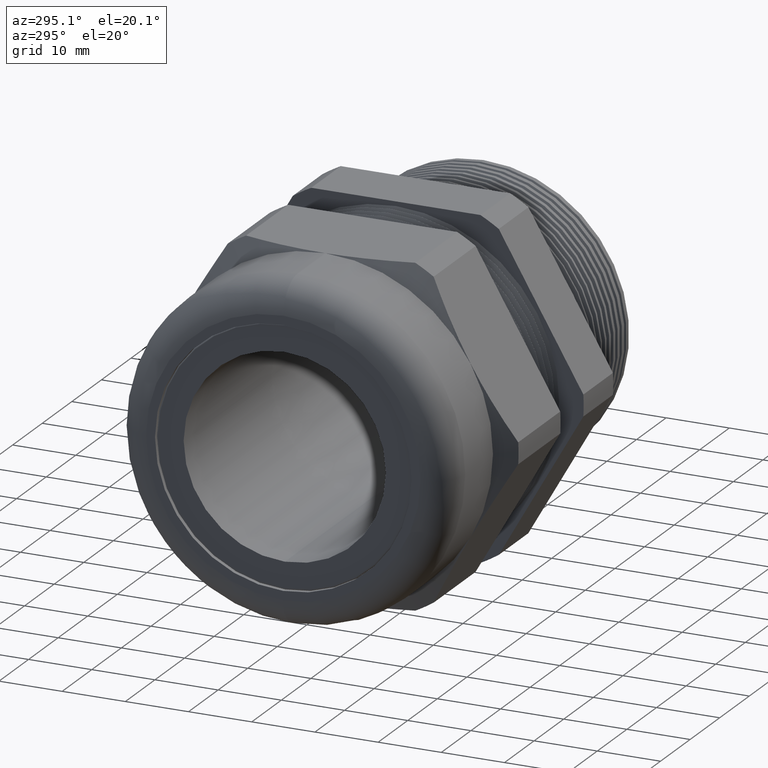
[diagram: clean part render]
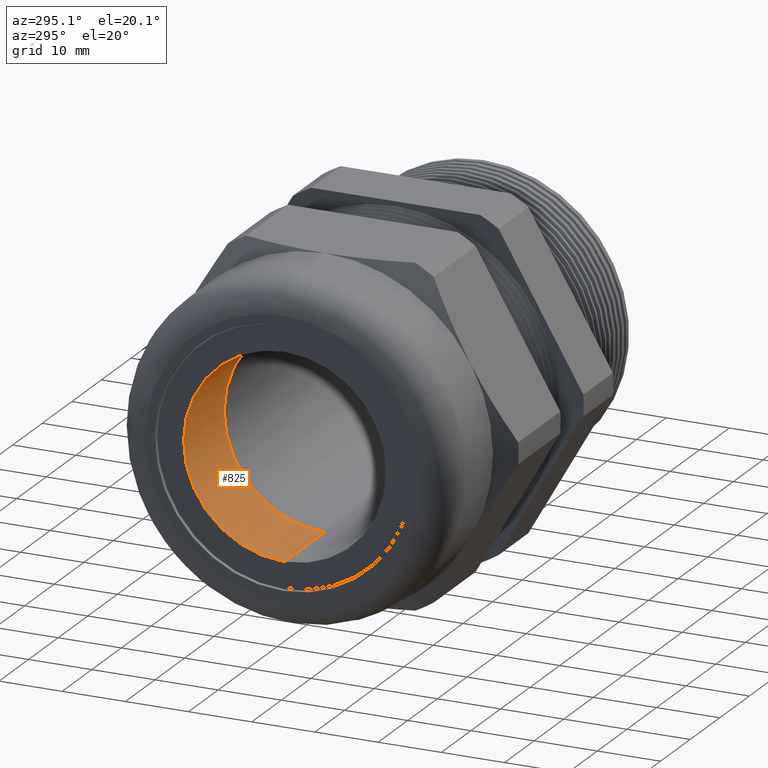
[diagram: same view with one face highlighted and labeled with its STEP entity id]
A machine part, auxiliary view. The second image highlights one B-rep face of the part: STEP entity #825.
In plain terms, the highlighted cylindrical surface (partial cylindrical patch) has radius 16.002 mm, axis along (1, 0, 0).
Its self-contained STEP definition (entity closure, byte-faithful):
#819 = EDGE_CURVE ( 'NONE', #858, #861, #2719, .T. ) ;
#825 = ADVANCED_FACE ( 'NONE', ( #2702 ), #2701, .F. ) ;
#839 = EDGE_CURVE ( 'NONE', #4167, #857, #2735, .T. ) ;
#847 = ORIENTED_EDGE ( 'NONE', *, *, #839, .T. ) ;
#857 = VERTEX_POINT ( 'NONE', #2766 ) ;
#858 = VERTEX_POINT ( 'NONE', #2765 ) ;
#860 = EDGE_CURVE ( 'NONE', #861, #857, #2823, .T. ) ;
#861 = VERTEX_POINT ( 'NONE', #2819 ) ;
#865 = ORIENTED_EDGE ( 'NONE', *, *, #860, .F. ) ;
#866 = ORIENTED_EDGE ( 'NONE', *, *, #819, .F. ) ;
#867 = ORIENTED_EDGE ( 'NONE', *, *, #4174, .T. ) ;
#868 = EDGE_LOOP ( 'NONE', ( #865, #866, #867, #847 ) ) ;
#2701 = CYLINDRICAL_SURFACE ( 'NONE', #2763, 0.6300000000000000000 ) ;
#2702 = FACE_OUTER_BOUND ( 'NONE', #868, .T. ) ;
#2715 = DIRECTION ( 'NONE',  ( 0.0000000000000000000, 0.0000000000000000000, -1.000000000000000000 ) ) ;
#2716 = DIRECTION ( 'NONE',  ( 1.000000000000000000, 0.0000000000000000000, 0.0000000000000000000 ) ) ;
#2717 = CARTESIAN_POINT ( 'NONE',  ( -1.869999999999999400, 0.0000000000000000000, 0.0000000000000000000 ) ) ;
#2718 = AXIS2_PLACEMENT_3D ( 'NONE', #2717, #2716, #2715 ) ;
#2719 = CIRCLE ( 'NONE', #2718, 0.6300000000000000000 ) ;
#2731 = DIRECTION ( 'NONE',  ( 0.0000000000000000000, 0.0000000000000000000, -1.000000000000000000 ) ) ;
#2732 = DIRECTION ( 'NONE',  ( 1.000000000000000000, 0.0000000000000000000, 0.0000000000000000000 ) ) ;
#2733 = CARTESIAN_POINT ( 'NONE',  ( -1.331250000000000300, 0.0000000000000000000, 0.0000000000000000000 ) ) ;
#2734 = AXIS2_PLACEMENT_3D ( 'NONE', #2733, #2732, #2731 ) ;
#2735 = CIRCLE ( 'NONE', #2734, 0.6300000000000000000 ) ;
#2760 = DIRECTION ( 'NONE',  ( 0.0000000000000000000, 0.0000000000000000000, -1.000000000000000000 ) ) ;
#2761 = DIRECTION ( 'NONE',  ( 1.000000000000000000, 0.0000000000000000000, 0.0000000000000000000 ) ) ;
#2762 = CARTESIAN_POINT ( 'NONE',  ( 0.3423310023310022200, 0.0000000000000000000, 0.0000000000000000000 ) ) ;
#2763 = AXIS2_PLACEMENT_3D ( 'NONE', #2762, #2761, #2760 ) ;
#2765 = CARTESIAN_POINT ( 'NONE',  ( -1.869999999999999400, 0.0000000000000000000, -0.6300000000000000000 ) ) ;
#2766 = CARTESIAN_POINT ( 'NONE',  ( -1.331250000000000300, 7.715274834628325400E-017, 0.6300000000000000000 ) ) ;
#2819 = CARTESIAN_POINT ( 'NONE',  ( -1.869999999999999400, 7.715274834628325400E-017, 0.6300000000000000000 ) ) ;
#2820 = DIRECTION ( 'NONE',  ( 1.000000000000000000, 0.0000000000000000000, 0.0000000000000000000 ) ) ;
#2821 = VECTOR ( 'NONE', #2820, 39.37007874015748100 ) ;
#2822 = CARTESIAN_POINT ( 'NONE',  ( 0.3423310023310022200, 7.715274834628325400E-017, 0.6300000000000000000 ) ) ;
#2823 = LINE ( 'NONE', #2822, #2821 ) ;
#3500 = CARTESIAN_POINT ( 'NONE',  ( -1.331250000000000300, 0.0000000000000000000, -0.6300000000000000000 ) ) ;
#3544 = DIRECTION ( 'NONE',  ( 1.000000000000000000, 0.0000000000000000000, 0.0000000000000000000 ) ) ;
#3545 = VECTOR ( 'NONE', #3544, 39.37007874015748100 ) ;
#3546 = CARTESIAN_POINT ( 'NONE',  ( 0.3423310023310022200, 0.0000000000000000000, -0.6300000000000000000 ) ) ;
#3547 = LINE ( 'NONE', #3546, #3545 ) ;
#4167 = VERTEX_POINT ( 'NONE', #3500 ) ;
#4174 = EDGE_CURVE ( 'NONE', #858, #4167, #3547, .T. ) ;